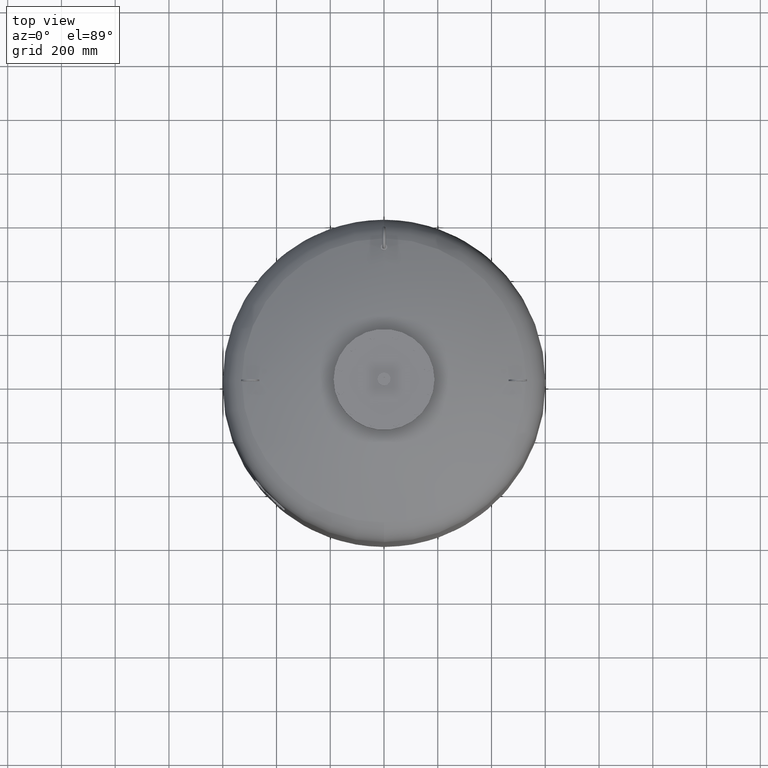
[diagram: clean part render]
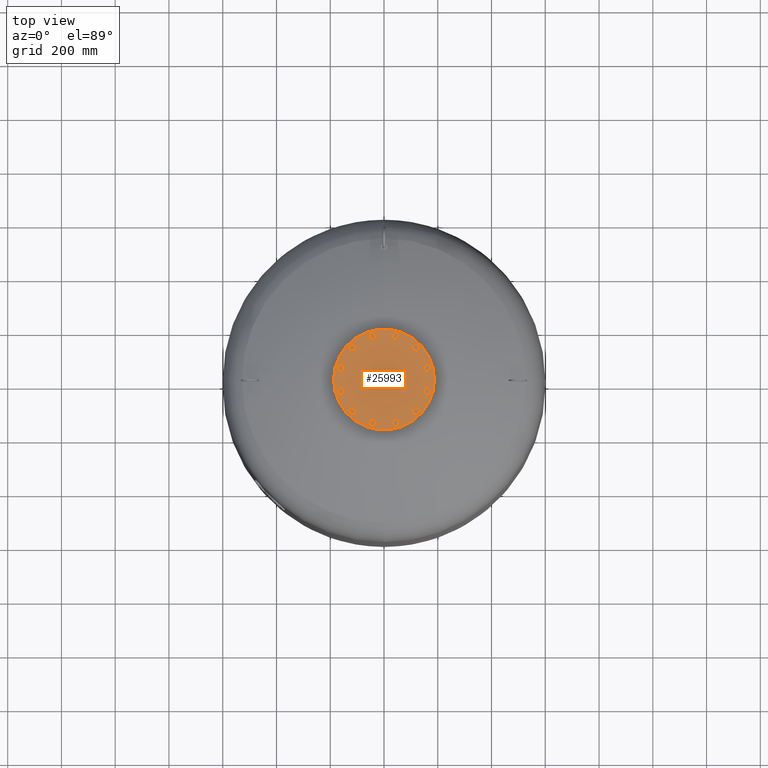
[diagram: same view with one face highlighted and labeled with its STEP entity id]
A machine part, top view. The second image highlights one B-rep face of the part: STEP entity #25993.
In plain terms, the highlighted planar face has unit normal (0, 0, 1).
Its self-contained STEP definition (entity closure, byte-faithful):
#18231=CARTESIAN_POINT('',(-187.500000000000000,0.0,2020.0));
#18232=VERTEX_POINT('',#18231);
#18248=CARTESIAN_POINT('',(187.500000000000000,-2.296137E-014,2020.0));
#18249=VERTEX_POINT('',#18248);
#18256=CARTESIAN_POINT('',(0.0,0.0,2020.0));
#18257=DIRECTION('',(0.0,0.0,-1.0));
#18258=DIRECTION('',(-1.0,0.0,0.0));
#18259=AXIS2_PLACEMENT_3D('',#18256,#18257,#18258);
#18260=CIRCLE('',#18259,187.500000000000000);
#18261=EDGE_CURVE('',#18249,#18232,#18260,.T.);
#23487=CARTESIAN_POINT('',(157.729139400922860,30.104983413641008,2020.0));
#23488=VERTEX_POINT('',#23487);
#23489=CARTESIAN_POINT('',(148.288440171855850,40.247625971983268,2020.0));
#23490=VERTEX_POINT('',#23489);
#23491=CARTESIAN_POINT('',(157.729139400922860,30.104983413641008,2020.0));
#23492=DIRECTION('',(-0.681323780155013,0.731982176419128,0.0));
#23493=VECTOR('',#23492,13.856406460551090);
#23494=LINE('',#23491,#23493);
#23495=EDGE_CURVE('',#23488,#23490,#23494,.T.);
#23527=CARTESIAN_POINT('',(171.233275132485970,33.209547496330110,2020.0));
#23528=VERTEX_POINT('',#23527);
#23529=CARTESIAN_POINT('',(171.233275132485970,33.209547496330110,2020.0));
#23530=DIRECTION('',(-0.974577049973894,-0.224052613607123,0.0));
#23531=VECTOR('',#23530,13.856406460551119);
#23532=LINE('',#23529,#23531);
#23533=EDGE_CURVE('',#23528,#23488,#23532,.T.);
#23558=CARTESIAN_POINT('',(175.296711634982050,46.456754137361422,2020.0));
#23559=VERTEX_POINT('',#23558);
#23560=CARTESIAN_POINT('',(175.296711634982050,46.456754137361422,2020.0));
#23561=DIRECTION('',(-0.293253269818881,-0.956034790026249,0.0));
#23562=VECTOR('',#23561,13.856406460551076);
#23563=LINE('',#23560,#23562);
#23564=EDGE_CURVE('',#23559,#23528,#23563,.T.);
#23589=CARTESIAN_POINT('',(152.351876674351930,53.494832613014587,2020.0));
#23590=VERTEX_POINT('',#23589);
#23591=CARTESIAN_POINT('',(148.288440171855850,40.247625971983268,2020.0));
#23592=DIRECTION('',(0.293253269818881,0.956034790026249,0.0));
#23593=VECTOR('',#23592,13.856406460551083);
#23594=LINE('',#23591,#23593);
#23595=EDGE_CURVE('',#23490,#23590,#23594,.T.);
#23620=CARTESIAN_POINT('',(165.856012405915040,56.599396695703689,2020.0));
#23621=VERTEX_POINT('',#23620);
#23622=CARTESIAN_POINT('',(152.351876674351930,53.494832613014587,2020.0));
#23623=DIRECTION('',(0.974577049973894,0.224052613607123,0.0));
#23624=VECTOR('',#23623,13.856406460551119);
#23625=LINE('',#23622,#23624);
#23626=EDGE_CURVE('',#23590,#23621,#23625,.T.);
#23651=CARTESIAN_POINT('',(165.856012405915040,56.599396695703689,2020.0));
#23652=DIRECTION('',(0.681323780155012,-0.731982176419129,0.0));
#23653=VECTOR('',#23652,13.856406460551096);
#23654=LINE('',#23651,#23653);
#23655=EDGE_CURVE('',#23621,#23559,#23654,.T.);
#23687=CARTESIAN_POINT('',(121.544949931435720,104.936250117183760,2020.0));
#23688=VERTEX_POINT('',#23687);
#23689=CARTESIAN_POINT('',(108.297743290404380,108.999686619679820,2020.0));
#23690=VERTEX_POINT('',#23689);
#23691=CARTESIAN_POINT('',(121.544949931435720,104.936250117183760,2020.0));
#23692=DIRECTION('',(-0.956034790026250,0.293253269818880,0.0));
#23693=VECTOR('',#23692,13.856406460551101);
#23694=LINE('',#23691,#23693);
#23695=EDGE_CURVE('',#23688,#23690,#23694,.T.);
#23727=CARTESIAN_POINT('',(131.687592489777960,114.376949346250780,2020.0));
#23728=VERTEX_POINT('',#23727);
#23729=CARTESIAN_POINT('',(131.687592489777960,114.376949346250780,2020.0));
#23730=DIRECTION('',(-0.731982176419127,-0.681323780155014,0.0));
#23731=VECTOR('',#23730,13.856406460551080);
#23732=LINE('',#23729,#23731);
#23733=EDGE_CURVE('',#23728,#23688,#23732,.T.);
#23758=CARTESIAN_POINT('',(128.583028407088880,127.881085077813880,2020.0));
#23759=VERTEX_POINT('',#23758);
#23760=CARTESIAN_POINT('',(128.583028407088880,127.881085077813880,2020.0));
#23761=DIRECTION('',(0.224052613607122,-0.974577049973894,0.0));
#23762=VECTOR('',#23761,13.856406460551099);
#23763=LINE('',#23760,#23762);
#23764=EDGE_CURVE('',#23759,#23728,#23763,.T.);
#23789=CARTESIAN_POINT('',(105.193179207715300,122.503822351242900,2020.0));
#23790=VERTEX_POINT('',#23789);
#23791=CARTESIAN_POINT('',(108.297743290404380,108.999686619679820,2020.0));
#23792=DIRECTION('',(-0.224052613607122,0.974577049973894,0.0));
#23793=VECTOR('',#23792,13.856406460551087);
#23794=LINE('',#23791,#23793);
#23795=EDGE_CURVE('',#23690,#23790,#23794,.T.);
#23820=CARTESIAN_POINT('',(115.335821766057560,131.944521580309950,2020.0));
#23821=VERTEX_POINT('',#23820);
#23822=CARTESIAN_POINT('',(105.193179207715300,122.503822351242900,2020.0));
#23823=DIRECTION('',(0.731982176419127,0.681323780155014,0.0));
#23824=VECTOR('',#23823,13.856406460551121);
#23825=LINE('',#23822,#23824);
#23826=EDGE_CURVE('',#23790,#23821,#23825,.T.);
#23851=CARTESIAN_POINT('',(115.335821766057560,131.944521580309950,2020.0));
#23852=DIRECTION('',(0.956034790026249,-0.293253269818881,0.0));
#23853=VECTOR('',#23852,13.856406460551076);
#23854=LINE('',#23851,#23853);
#23855=EDGE_CURVE('',#23821,#23759,#23854,.T.);
#23887=CARTESIAN_POINT('',(52.792889283739193,151.649933345076730,2020.0));
#23888=VERTEX_POINT('',#23887);
#23889=CARTESIAN_POINT('',(39.288753552176118,148.545369262387680,2020.0));
#23890=VERTEX_POINT('',#23889);
#23891=CARTESIAN_POINT('',(52.792889283739193,151.649933345076730,2020.0));
#23892=DIRECTION('',(-0.974577049973894,-0.224052613607120,0.0));
#23893=VECTOR('',#23892,13.856406460551073);
#23894=LINE('',#23891,#23893);
#23895=EDGE_CURVE('',#23888,#23890,#23894,.T.);
#23927=CARTESIAN_POINT('',(56.856325786235274,164.897139986108100,2020.0));
#23928=VERTEX_POINT('',#23927);
#23929=CARTESIAN_POINT('',(56.856325786235274,164.897139986108100,2020.0));
#23930=DIRECTION('',(-0.293253269818881,-0.956034790026249,0.0));
#23931=VECTOR('',#23930,13.856406460551133);
#23932=LINE('',#23929,#23931);
#23933=EDGE_CURVE('',#23928,#23888,#23932,.T.);
#23958=CARTESIAN_POINT('',(47.415626557168267,175.039782544450330,2020.0));
#23959=VERTEX_POINT('',#23958);
#23960=CARTESIAN_POINT('',(47.415626557168267,175.039782544450330,2020.0));
#23961=DIRECTION('',(0.681323780155014,-0.731982176419128,0.0));
#23962=VECTOR('',#23961,13.856406460551069);
#23963=LINE('',#23960,#23962);
#23964=EDGE_CURVE('',#23959,#23928,#23963,.T.);
#23989=CARTESIAN_POINT('',(29.848054323109103,158.688011820729910,2020.0));
#23990=VERTEX_POINT('',#23989);
#23991=CARTESIAN_POINT('',(39.288753552176118,148.545369262387680,2020.0));
#23992=DIRECTION('',(-0.681323780155014,0.731982176419127,0.0));
#23993=VECTOR('',#23992,13.856406460551076);
#23994=LINE('',#23991,#23993);
#23995=EDGE_CURVE('',#23890,#23990,#23994,.T.);
#24020=CARTESIAN_POINT('',(33.911490825605156,171.935218461761250,2020.0));
#24021=VERTEX_POINT('',#24020);
#24022=CARTESIAN_POINT('',(29.848054323109103,158.688011820729910,2020.0));
#24023=DIRECTION('',(0.293253269818879,0.956034790026250,0.0));
#24024=VECTOR('',#24023,13.856406460551097);
#24025=LINE('',#24022,#24024);
#24026=EDGE_CURVE('',#23990,#24021,#24025,.T.);
#24051=CARTESIAN_POINT('',(33.911490825605156,171.935218461761250,2020.0));
#24052=DIRECTION('',(0.974577049973894,0.224052613607121,0.0));
#24053=VECTOR('',#24052,13.856406460551113);
#24054=LINE('',#24051,#24053);
#24055=EDGE_CURVE('',#24021,#23959,#24054,.T.);
#24087=CARTESIAN_POINT('',(-30.104983413641008,157.729139400922860,2020.0));
#24088=VERTEX_POINT('',#24087);
#24089=CARTESIAN_POINT('',(-40.247625971983268,148.288440171855850,2020.0));
#24090=VERTEX_POINT('',#24089);
#24091=CARTESIAN_POINT('',(-30.104983413641008,157.729139400922860,2020.0));
#24092=DIRECTION('',(-0.731982176419128,-0.681323780155013,0.0));
#24093=VECTOR('',#24092,13.856406460551090);
#24094=LINE('',#24091,#24093);
#24095=EDGE_CURVE('',#24088,#24090,#24094,.T.);
#24127=CARTESIAN_POINT('',(-33.209547496330110,171.233275132485970,2020.0));
#24128=VERTEX_POINT('',#24127);
#24129=CARTESIAN_POINT('',(-33.209547496330110,171.233275132485970,2020.0));
#24130=DIRECTION('',(0.224052613607123,-0.974577049973894,0.0));
#24131=VECTOR('',#24130,13.856406460551119);
#24132=LINE('',#24129,#24131);
#24133=EDGE_CURVE('',#24128,#24088,#24132,.T.);
#24158=CARTESIAN_POINT('',(-46.456754137361422,175.296711634982050,2020.0));
#24159=VERTEX_POINT('',#24158);
#24160=CARTESIAN_POINT('',(-46.456754137361422,175.296711634982050,2020.0));
#24161=DIRECTION('',(0.956034790026249,-0.293253269818881,0.0));
#24162=VECTOR('',#24161,13.856406460551076);
#24163=LINE('',#24160,#24162);
#24164=EDGE_CURVE('',#24159,#24128,#24163,.T.);
#24189=CARTESIAN_POINT('',(-53.494832613014587,152.351876674351930,2020.0));
#24190=VERTEX_POINT('',#24189);
#24191=CARTESIAN_POINT('',(-40.247625971983268,148.288440171855850,2020.0));
#24192=DIRECTION('',(-0.956034790026249,0.293253269818881,0.0));
#24193=VECTOR('',#24192,13.856406460551083);
#24194=LINE('',#24191,#24193);
#24195=EDGE_CURVE('',#24090,#24190,#24194,.T.);
#24220=CARTESIAN_POINT('',(-56.599396695703689,165.856012405915040,2020.0));
#24221=VERTEX_POINT('',#24220);
#24222=CARTESIAN_POINT('',(-53.494832613014587,152.351876674351930,2020.0));
#24223=DIRECTION('',(-0.224052613607123,0.974577049973894,0.0));
#24224=VECTOR('',#24223,13.856406460551119);
#24225=LINE('',#24222,#24224);
#24226=EDGE_CURVE('',#24190,#24221,#24225,.T.);
#24251=CARTESIAN_POINT('',(-56.599396695703689,165.856012405915040,2020.0));
#24252=DIRECTION('',(0.731982176419129,0.681323780155012,0.0));
#24253=VECTOR('',#24252,13.856406460551096);
#24254=LINE('',#24251,#24253);
#24255=EDGE_CURVE('',#24221,#24159,#24254,.T.);
#24287=CARTESIAN_POINT('',(-104.936250117183700,121.544949931435750,2020.0));
#24288=VERTEX_POINT('',#24287);
#24289=CARTESIAN_POINT('',(-108.999686619679760,108.297743290404440,2020.0));
#24290=VERTEX_POINT('',#24289);
#24291=CARTESIAN_POINT('',(-104.936250117183700,121.544949931435750,2020.0));
#24292=DIRECTION('',(-0.293253269818880,-0.956034790026249,0.0));
#24293=VECTOR('',#24292,13.856406460551073);
#24294=LINE('',#24291,#24293);
#24295=EDGE_CURVE('',#24288,#24290,#24294,.T.);
#24327=CARTESIAN_POINT('',(-114.376949346250730,131.687592489778010,2020.0));
#24328=VERTEX_POINT('',#24327);
#24329=CARTESIAN_POINT('',(-114.376949346250730,131.687592489778010,2020.0));
#24330=DIRECTION('',(0.681323780155013,-0.731982176419128,0.0));
#24331=VECTOR('',#24330,13.856406460551101);
#24332=LINE('',#24329,#24331);
#24333=EDGE_CURVE('',#24328,#24288,#24332,.T.);
#24358=CARTESIAN_POINT('',(-127.881085077813810,128.583028407088930,2020.0));
#24359=VERTEX_POINT('',#24358);
#24360=CARTESIAN_POINT('',(-127.881085077813810,128.583028407088930,2020.0));
#24361=DIRECTION('',(0.974577049973894,0.224052613607122,0.0));
#24362=VECTOR('',#24361,13.856406460551087);
#24363=LINE('',#24360,#24362);
#24364=EDGE_CURVE('',#24359,#24328,#24363,.T.);
#24389=CARTESIAN_POINT('',(-122.503822351242850,105.193179207715360,2020.0));
#24390=VERTEX_POINT('',#24389);
#24391=CARTESIAN_POINT('',(-108.999686619679760,108.297743290404440,2020.0));
#24392=DIRECTION('',(-0.974577049973894,-0.224052613607122,0.0));
#24393=VECTOR('',#24392,13.856406460551087);
#24394=LINE('',#24391,#24393);
#24395=EDGE_CURVE('',#24290,#24390,#24394,.T.);
#24420=CARTESIAN_POINT('',(-131.944521580309900,115.335821766057620,2020.0));
#24421=VERTEX_POINT('',#24420);
#24422=CARTESIAN_POINT('',(-122.503822351242850,105.193179207715360,2020.0));
#24423=DIRECTION('',(-0.681323780155014,0.731982176419127,0.0));
#24424=VECTOR('',#24423,13.856406460551121);
#24425=LINE('',#24422,#24424);
#24426=EDGE_CURVE('',#24390,#24421,#24425,.T.);
#24451=CARTESIAN_POINT('',(-131.944521580309900,115.335821766057620,2020.0));
#24452=DIRECTION('',(0.293253269818882,0.956034790026249,0.0));
#24453=VECTOR('',#24452,13.856406460551081);
#24454=LINE('',#24451,#24453);
#24455=EDGE_CURVE('',#24421,#24359,#24454,.T.);
#24487=CARTESIAN_POINT('',(-151.649933345076730,52.792889283739214,2020.0));
#24488=VERTEX_POINT('',#24487);
#24489=CARTESIAN_POINT('',(-148.545369262387650,39.288753552176125,2020.0));
#24490=VERTEX_POINT('',#24489);
#24491=CARTESIAN_POINT('',(-151.649933345076730,52.792889283739214,2020.0));
#24492=DIRECTION('',(0.224052613607122,-0.974577049973894,0.0));
#24493=VECTOR('',#24492,13.856406460551092);
#24494=LINE('',#24491,#24493);
#24495=EDGE_CURVE('',#24488,#24490,#24494,.T.);
#24527=CARTESIAN_POINT('',(-164.897139986108100,56.856325786235296,2020.0));
#24528=VERTEX_POINT('',#24527);
#24529=CARTESIAN_POINT('',(-164.897139986108100,56.856325786235296,2020.0));
#24530=DIRECTION('',(0.956034790026249,-0.293253269818881,0.0));
#24531=VECTOR('',#24530,13.856406460551133);
#24532=LINE('',#24529,#24531);
#24533=EDGE_CURVE('',#24528,#24488,#24532,.T.);
#24558=CARTESIAN_POINT('',(-175.039782544450300,47.415626557168260,2020.0));
#24559=VERTEX_POINT('',#24558);
#24560=CARTESIAN_POINT('',(-175.039782544450300,47.415626557168260,2020.0));
#24561=DIRECTION('',(0.731982176419126,0.681323780155016,0.0));
#24562=VECTOR('',#24561,13.856406460551069);
#24563=LINE('',#24560,#24562);
#24564=EDGE_CURVE('',#24559,#24528,#24563,.T.);
#24589=CARTESIAN_POINT('',(-158.688011820729910,29.848054323109110,2020.0));
#24590=VERTEX_POINT('',#24589);
#24591=CARTESIAN_POINT('',(-148.545369262387650,39.288753552176125,2020.0));
#24592=DIRECTION('',(-0.731982176419128,-0.681323780155013,0.0));
#24593=VECTOR('',#24592,13.856406460551096);
#24594=LINE('',#24591,#24593);
#24595=EDGE_CURVE('',#24490,#24590,#24594,.T.);
#24620=CARTESIAN_POINT('',(-171.935218461761250,33.911490825605171,2020.0));
#24621=VERTEX_POINT('',#24620);
#24622=CARTESIAN_POINT('',(-158.688011820729910,29.848054323109110,2020.0));
#24623=DIRECTION('',(-0.956034790026250,0.293253269818880,0.0));
#24624=VECTOR('',#24623,13.856406460551101);
#24625=LINE('',#24622,#24624);
#24626=EDGE_CURVE('',#24590,#24621,#24625,.T.);
#24651=CARTESIAN_POINT('',(-171.935218461761250,33.911490825605171,2020.0));
#24652=DIRECTION('',(-0.224052613607120,0.974577049973894,0.0));
#24653=VECTOR('',#24652,13.856406460551087);
#24654=LINE('',#24651,#24653);
#24655=EDGE_CURVE('',#24621,#24559,#24654,.T.);
#24687=CARTESIAN_POINT('',(-157.729139400922860,-30.104983413640987,2020.0));
#24688=VERTEX_POINT('',#24687);
#24689=CARTESIAN_POINT('',(-148.288440171855850,-40.247625971983247,2020.0));
#24690=VERTEX_POINT('',#24689);
#24691=CARTESIAN_POINT('',(-157.729139400922860,-30.104983413640987,2020.0));
#24692=DIRECTION('',(0.681323780155013,-0.731982176419128,0.0));
#24693=VECTOR('',#24692,13.856406460551090);
#24694=LINE('',#24691,#24693);
#24695=EDGE_CURVE('',#24688,#24690,#24694,.T.);
#24727=CARTESIAN_POINT('',(-171.233275132486000,-33.209547496330096,2020.0));
#24728=VERTEX_POINT('',#24727);
#24729=CARTESIAN_POINT('',(-171.233275132486000,-33.209547496330096,2020.0));
#24730=DIRECTION('',(0.974577049973894,0.224052613607123,0.0));
#24731=VECTOR('',#24730,13.856406460551147);
#24732=LINE('',#24729,#24731);
#24733=EDGE_CURVE('',#24728,#24688,#24732,.T.);
#24758=CARTESIAN_POINT('',(-175.296711634982050,-46.456754137361401,2020.0));
#24759=VERTEX_POINT('',#24758);
#24760=CARTESIAN_POINT('',(-175.296711634982050,-46.456754137361401,2020.0));
#24761=DIRECTION('',(0.293253269818880,0.956034790026250,0.0));
#24762=VECTOR('',#24761,13.856406460551062);
#24763=LINE('',#24760,#24762);
#24764=EDGE_CURVE('',#24759,#24728,#24763,.T.);
#24789=CARTESIAN_POINT('',(-152.351876674351960,-53.494832613014580,2020.0));
#24790=VERTEX_POINT('',#24789);
#24791=CARTESIAN_POINT('',(-148.288440171855850,-40.247625971983247,2020.0));
#24792=DIRECTION('',(-0.293253269818883,-0.956034790026249,0.0));
#24793=VECTOR('',#24792,13.856406460551106);
#24794=LINE('',#24791,#24793);
#24795=EDGE_CURVE('',#24690,#24790,#24794,.T.);
#24820=CARTESIAN_POINT('',(-165.856012405915070,-56.599396695703646,2020.0));
#24821=VERTEX_POINT('',#24820);
#24822=CARTESIAN_POINT('',(-152.351876674351960,-53.494832613014580,2020.0));
#24823=DIRECTION('',(-0.974577049973894,-0.224052613607121,0.0));
#24824=VECTOR('',#24823,13.856406460551110);
#24825=LINE('',#24822,#24824);
#24826=EDGE_CURVE('',#24790,#24821,#24825,.T.);
#24851=CARTESIAN_POINT('',(-165.856012405915070,-56.599396695703646,2020.0));
#24852=DIRECTION('',(-0.681323780155012,0.731982176419129,0.0));
#24853=VECTOR('',#24852,13.856406460551062);
#24854=LINE('',#24851,#24853);
#24855=EDGE_CURVE('',#24821,#24759,#24854,.T.);
#24887=CARTESIAN_POINT('',(-121.544949931435750,-104.936250117183680,2020.0));
#24888=VERTEX_POINT('',#24887);
#24889=CARTESIAN_POINT('',(-108.297743290404440,-108.999686619679760,2020.0));
#24890=VERTEX_POINT('',#24889);
#24891=CARTESIAN_POINT('',(-121.544949931435750,-104.936250117183680,2020.0));
#24892=DIRECTION('',(0.956034790026249,-0.293253269818882,0.0));
#24893=VECTOR('',#24892,13.856406460551081);
#24894=LINE('',#24891,#24893);
#24895=EDGE_CURVE('',#24888,#24890,#24894,.T.);
#24927=CARTESIAN_POINT('',(-131.687592489778010,-114.376949346250730,2020.0));
#24928=VERTEX_POINT('',#24927);
#24929=CARTESIAN_POINT('',(-131.687592489778010,-114.376949346250730,2020.0));
#24930=DIRECTION('',(0.731982176419127,0.681323780155014,0.0));
#24931=VECTOR('',#24930,13.856406460551121);
#24932=LINE('',#24929,#24931);
#24933=EDGE_CURVE('',#24928,#24888,#24932,.T.);
#24958=CARTESIAN_POINT('',(-128.583028407088930,-127.881085077813790,2020.0));
#24959=VERTEX_POINT('',#24958);
#24960=CARTESIAN_POINT('',(-128.583028407088930,-127.881085077813790,2020.0));
#24961=DIRECTION('',(-0.224052613607122,0.974577049973894,0.0));
#24962=VECTOR('',#24961,13.856406460551071);
#24963=LINE('',#24960,#24962);
#24964=EDGE_CURVE('',#24959,#24928,#24963,.T.);
#24989=CARTESIAN_POINT('',(-105.193179207715360,-122.503822351242850,2020.0));
#24990=VERTEX_POINT('',#24989);
#24991=CARTESIAN_POINT('',(-108.297743290404440,-108.999686619679760,2020.0));
#24992=DIRECTION('',(0.224052613607122,-0.974577049973894,0.0));
#24993=VECTOR('',#24992,13.856406460551087);
#24994=LINE('',#24991,#24993);
#24995=EDGE_CURVE('',#24890,#24990,#24994,.T.);
#25020=CARTESIAN_POINT('',(-115.335821766057620,-131.944521580309900,2020.0));
#25021=VERTEX_POINT('',#25020);
#25022=CARTESIAN_POINT('',(-105.193179207715360,-122.503822351242850,2020.0));
#25023=DIRECTION('',(-0.731982176419127,-0.681323780155014,0.0));
#25024=VECTOR('',#25023,13.856406460551121);
#25025=LINE('',#25022,#25024);
#25026=EDGE_CURVE('',#24990,#25021,#25025,.T.);
#25051=CARTESIAN_POINT('',(-115.335821766057620,-131.944521580309900,2020.0));
#25052=DIRECTION('',(-0.956034790026249,0.293253269818883,0.0));
#25053=VECTOR('',#25052,13.856406460551085);
#25054=LINE('',#25051,#25053);
#25055=EDGE_CURVE('',#25021,#24959,#25054,.T.);
#25087=CARTESIAN_POINT('',(-52.792889283739228,-151.649933345076730,2020.0));
#25088=VERTEX_POINT('',#25087);
#25089=CARTESIAN_POINT('',(-39.288753552176132,-148.545369262387680,2020.0));
#25090=VERTEX_POINT('',#25089);
#25091=CARTESIAN_POINT('',(-52.792889283739228,-151.649933345076730,2020.0));
#25092=DIRECTION('',(0.974577049973894,0.224052613607120,0.0));
#25093=VECTOR('',#25092,13.856406460551094);
#25094=LINE('',#25091,#25093);
#25095=EDGE_CURVE('',#25088,#25090,#25094,.T.);
#25127=CARTESIAN_POINT('',(-56.856325786235296,-164.897139986108100,2020.0));
#25128=VERTEX_POINT('',#25127);
#25129=CARTESIAN_POINT('',(-56.856325786235296,-164.897139986108100,2020.0));
#25130=DIRECTION('',(0.293253269818880,0.956034790026250,0.0));
#25131=VECTOR('',#25130,13.856406460551129);
#25132=LINE('',#25129,#25131);
#25133=EDGE_CURVE('',#25128,#25088,#25132,.T.);
#25158=CARTESIAN_POINT('',(-47.415626557168281,-175.039782544450300,2020.0));
#25159=VERTEX_POINT('',#25158);
#25160=CARTESIAN_POINT('',(-47.415626557168281,-175.039782544450300,2020.0));
#25161=DIRECTION('',(-0.681323780155015,0.731982176419126,0.0));
#25162=VECTOR('',#25161,13.856406460551055);
#25163=LINE('',#25160,#25162);
#25164=EDGE_CURVE('',#25159,#25128,#25163,.T.);
#25189=CARTESIAN_POINT('',(-29.848054323109121,-158.688011820729910,2020.0));
#25190=VERTEX_POINT('',#25189);
#25191=CARTESIAN_POINT('',(-39.288753552176132,-148.545369262387680,2020.0));
#25192=DIRECTION('',(0.681323780155014,-0.731982176419127,0.0));
#25193=VECTOR('',#25192,13.856406460551073);
#25194=LINE('',#25191,#25193);
#25195=EDGE_CURVE('',#25090,#25190,#25194,.T.);
#25220=CARTESIAN_POINT('',(-33.911490825605199,-171.935218461761280,2020.0));
#25221=VERTEX_POINT('',#25220);
#25222=CARTESIAN_POINT('',(-29.848054323109121,-158.688011820729910,2020.0));
#25223=DIRECTION('',(-0.293253269818880,-0.956034790026249,0.0));
#25224=VECTOR('',#25223,13.856406460551133);
#25225=LINE('',#25222,#25224);
#25226=EDGE_CURVE('',#25190,#25221,#25225,.T.);
#25251=CARTESIAN_POINT('',(-33.911490825605199,-171.935218461761280,2020.0));
#25252=DIRECTION('',(-0.974577049973895,-0.224052613607118,0.0));
#25253=VECTOR('',#25252,13.856406460551074);
#25254=LINE('',#25251,#25253);
#25255=EDGE_CURVE('',#25221,#25159,#25254,.T.);
#25287=CARTESIAN_POINT('',(30.104983413640952,-157.729139400922890,2020.0));
#25288=VERTEX_POINT('',#25287);
#25289=CARTESIAN_POINT('',(40.247625971983211,-148.288440171855880,2020.0));
#25290=VERTEX_POINT('',#25289);
#25291=CARTESIAN_POINT('',(30.104983413640952,-157.729139400922890,2020.0));
#25292=DIRECTION('',(0.731982176419128,0.681323780155013,0.0));
#25293=VECTOR('',#25292,13.856406460551090);
#25294=LINE('',#25291,#25293);
#25295=EDGE_CURVE('',#25288,#25290,#25294,.T.);
#25327=CARTESIAN_POINT('',(33.209547496330039,-171.233275132486000,2020.0));
#25328=VERTEX_POINT('',#25327);
#25329=CARTESIAN_POINT('',(33.209547496330039,-171.233275132486000,2020.0));
#25330=DIRECTION('',(-0.224052613607122,0.974577049973894,0.0));
#25331=VECTOR('',#25330,13.856406460551115);
#25332=LINE('',#25329,#25331);
#25333=EDGE_CURVE('',#25328,#25288,#25332,.T.);
#25358=CARTESIAN_POINT('',(46.456754137361351,-175.296711634982070,2020.0));
#25359=VERTEX_POINT('',#25358);
#25360=CARTESIAN_POINT('',(46.456754137361351,-175.296711634982070,2020.0));
#25361=DIRECTION('',(-0.956034790026249,0.293253269818881,0.0));
#25362=VECTOR('',#25361,13.856406460551076);
#25363=LINE('',#25360,#25362);
#25364=EDGE_CURVE('',#25359,#25328,#25363,.T.);
#25389=CARTESIAN_POINT('',(53.494832613014523,-152.351876674351960,2020.0));
#25390=VERTEX_POINT('',#25389);
#25391=CARTESIAN_POINT('',(40.247625971983211,-148.288440171855880,2020.0));
#25392=DIRECTION('',(0.956034790026249,-0.293253269818881,0.0));
#25393=VECTOR('',#25392,13.856406460551076);
#25394=LINE('',#25391,#25393);
#25395=EDGE_CURVE('',#25290,#25390,#25394,.T.);
#25420=CARTESIAN_POINT('',(56.599396695703625,-165.856012405915070,2020.0));
#25421=VERTEX_POINT('',#25420);
#25422=CARTESIAN_POINT('',(53.494832613014523,-152.351876674351960,2020.0));
#25423=DIRECTION('',(0.224052613607123,-0.974577049973894,0.0));
#25424=VECTOR('',#25423,13.856406460551119);
#25425=LINE('',#25422,#25424);
#25426=EDGE_CURVE('',#25390,#25421,#25425,.T.);
#25451=CARTESIAN_POINT('',(56.599396695703625,-165.856012405915070,2020.0));
#25452=DIRECTION('',(-0.731982176419129,-0.681323780155012,0.0));
#25453=VECTOR('',#25452,13.856406460551101);
#25454=LINE('',#25451,#25453);
#25455=EDGE_CURVE('',#25421,#25359,#25454,.T.);
#25487=CARTESIAN_POINT('',(104.936250117183660,-121.544949931435800,2020.0));
#25488=VERTEX_POINT('',#25487);
#25489=CARTESIAN_POINT('',(108.999686619679750,-108.297743290404470,2020.0));
#25490=VERTEX_POINT('',#25489);
#25491=CARTESIAN_POINT('',(104.936250117183660,-121.544949931435800,2020.0));
#25492=DIRECTION('',(0.293253269818882,0.956034790026249,0.0));
#25493=VECTOR('',#25492,13.856406460551094);
#25494=LINE('',#25491,#25493);
#25495=EDGE_CURVE('',#25488,#25490,#25494,.T.);
#25527=CARTESIAN_POINT('',(114.376949346250710,-131.687592489778040,2020.0));
#25528=VERTEX_POINT('',#25527);
#25529=CARTESIAN_POINT('',(114.376949346250710,-131.687592489778040,2020.0));
#25530=DIRECTION('',(-0.681323780155015,0.731982176419126,0.0));
#25531=VECTOR('',#25530,13.856406460551110);
#25532=LINE('',#25529,#25531);
#25533=EDGE_CURVE('',#25528,#25488,#25532,.T.);
#25558=CARTESIAN_POINT('',(127.881085077813760,-128.583028407088960,2020.0));
#25559=VERTEX_POINT('',#25558);
#25560=CARTESIAN_POINT('',(127.881085077813760,-128.583028407088960,2020.0));
#25561=DIRECTION('',(-0.974577049973894,-0.224052613607122,0.0));
#25562=VECTOR('',#25561,13.856406460551058);
#25563=LINE('',#25560,#25562);
#25564=EDGE_CURVE('',#25559,#25528,#25563,.T.);
#25589=CARTESIAN_POINT('',(122.503822351242830,-105.193179207715390,2020.0));
#25590=VERTEX_POINT('',#25589);
#25591=CARTESIAN_POINT('',(108.999686619679750,-108.297743290404470,2020.0));
#25592=DIRECTION('',(0.974577049973894,0.224052613607122,0.0));
#25593=VECTOR('',#25592,13.856406460551087);
#25594=LINE('',#25591,#25593);
#25595=EDGE_CURVE('',#25490,#25590,#25594,.T.);
#25620=CARTESIAN_POINT('',(131.944521580309870,-115.335821766057650,2020.0));
#25621=VERTEX_POINT('',#25620);
#25622=CARTESIAN_POINT('',(122.503822351242830,-105.193179207715390,2020.0));
#25623=DIRECTION('',(0.681323780155014,-0.731982176419127,0.0));
#25624=VECTOR('',#25623,13.856406460551110);
#25625=LINE('',#25622,#25624);
#25626=EDGE_CURVE('',#25590,#25621,#25625,.T.);
#25651=CARTESIAN_POINT('',(131.944521580309870,-115.335821766057650,2020.0));
#25652=DIRECTION('',(-0.293253269818883,-0.956034790026249,0.0));
#25653=VECTOR('',#25652,13.856406460551085);
#25654=LINE('',#25651,#25653);
#25655=EDGE_CURVE('',#25621,#25559,#25654,.T.);
#25687=CARTESIAN_POINT('',(151.649933345076730,-52.792889283739228,2020.0));
#25688=VERTEX_POINT('',#25687);
#25689=CARTESIAN_POINT('',(148.545369262387650,-39.288753552176139,2020.0));
#25690=VERTEX_POINT('',#25689);
#25691=CARTESIAN_POINT('',(151.649933345076730,-52.792889283739228,2020.0));
#25692=DIRECTION('',(-0.224052613607122,0.974577049973894,0.0));
#25693=VECTOR('',#25692,13.856406460551092);
#25694=LINE('',#25691,#25693);
#25695=EDGE_CURVE('',#25688,#25690,#25694,.T.);
#25727=CARTESIAN_POINT('',(164.897139986108070,-56.856325786235303,2020.0));
#25728=VERTEX_POINT('',#25727);
#25729=CARTESIAN_POINT('',(164.897139986108070,-56.856325786235303,2020.0));
#25730=DIRECTION('',(-0.956034790026249,0.293253269818881,0.0));
#25731=VECTOR('',#25730,13.856406460551105);
#25732=LINE('',#25729,#25731);
#25733=EDGE_CURVE('',#25728,#25688,#25732,.T.);
#25758=CARTESIAN_POINT('',(175.039782544450300,-47.415626557168295,2020.0));
#25759=VERTEX_POINT('',#25758);
#25760=CARTESIAN_POINT('',(175.039782544450300,-47.415626557168295,2020.0));
#25761=DIRECTION('',(-0.731982176419128,-0.681323780155014,0.0));
#25762=VECTOR('',#25761,13.856406460551069);
#25763=LINE('',#25760,#25762);
#25764=EDGE_CURVE('',#25759,#25728,#25763,.T.);
#25789=CARTESIAN_POINT('',(158.688011820729910,-29.848054323109132,2020.0));
#25790=VERTEX_POINT('',#25789);
#25791=CARTESIAN_POINT('',(148.545369262387650,-39.288753552176139,2020.0));
#25792=DIRECTION('',(0.731982176419128,0.681323780155013,0.0));
#25793=VECTOR('',#25792,13.856406460551090);
#25794=LINE('',#25791,#25793);
#25795=EDGE_CURVE('',#25690,#25790,#25794,.T.);
#25820=CARTESIAN_POINT('',(171.935218461761250,-33.911490825605206,2020.0));
#25821=VERTEX_POINT('',#25820);
#25822=CARTESIAN_POINT('',(158.688011820729910,-29.848054323109132,2020.0));
#25823=DIRECTION('',(0.956034790026249,-0.293253269818881,0.0));
#25824=VECTOR('',#25823,13.856406460551105);
#25825=LINE('',#25822,#25824);
#25826=EDGE_CURVE('',#25790,#25821,#25825,.T.);
#25851=CARTESIAN_POINT('',(171.935218461761250,-33.911490825605206,2020.0));
#25852=DIRECTION('',(0.224052613607120,-0.974577049973894,0.0));
#25853=VECTOR('',#25852,13.856406460551087);
#25854=LINE('',#25851,#25853);
#25855=EDGE_CURVE('',#25821,#25759,#25854,.T.);
#25882=CARTESIAN_POINT('',(-93.750000000000000,-7.888609E-031,2020.0));
#25883=DIRECTION('',(0.0,0.0,1.0));
#25884=DIRECTION('',(0.0,1.0,0.0));
#25885=AXIS2_PLACEMENT_3D('',#25882,#25883,#25884);
#25886=PLANE('',#25885);
#25887=CARTESIAN_POINT('',(0.0,0.0,2020.0));
#25888=DIRECTION('',(0.0,0.0,-1.0));
#25889=DIRECTION('',(-1.0,0.0,0.0));
#25890=AXIS2_PLACEMENT_3D('',#25887,#25888,#25889);
#25891=CIRCLE('',#25890,187.500000000000000);
#25892=EDGE_CURVE('',#18232,#18249,#25891,.T.);
#25893=ORIENTED_EDGE('',*,*,#25892,.F.);
#25894=ORIENTED_EDGE('',*,*,#18261,.F.);
#25895=EDGE_LOOP('',(#25893,#25894));
#25896=FACE_OUTER_BOUND('',#25895,.T.);
#25897=ORIENTED_EDGE('',*,*,#23495,.T.);
#25898=ORIENTED_EDGE('',*,*,#23595,.T.);
#25899=ORIENTED_EDGE('',*,*,#23626,.T.);
#25900=ORIENTED_EDGE('',*,*,#23655,.T.);
#25901=ORIENTED_EDGE('',*,*,#23564,.T.);
#25902=ORIENTED_EDGE('',*,*,#23533,.T.);
#25903=EDGE_LOOP('',(#25897,#25898,#25899,#25900,#25901,#25902));
#25904=FACE_BOUND('',#25903,.T.);
#25905=ORIENTED_EDGE('',*,*,#23695,.T.);
#25906=ORIENTED_EDGE('',*,*,#23795,.T.);
#25907=ORIENTED_EDGE('',*,*,#23826,.T.);
#25908=ORIENTED_EDGE('',*,*,#23855,.T.);
#25909=ORIENTED_EDGE('',*,*,#23764,.T.);
#25910=ORIENTED_EDGE('',*,*,#23733,.T.);
#25911=EDGE_LOOP('',(#25905,#25906,#25907,#25908,#25909,#25910));
#25912=FACE_BOUND('',#25911,.T.);
#25913=ORIENTED_EDGE('',*,*,#23895,.T.);
#25914=ORIENTED_EDGE('',*,*,#23995,.T.);
#25915=ORIENTED_EDGE('',*,*,#24026,.T.);
#25916=ORIENTED_EDGE('',*,*,#24055,.T.);
#25917=ORIENTED_EDGE('',*,*,#23964,.T.);
#25918=ORIENTED_EDGE('',*,*,#23933,.T.);
#25919=EDGE_LOOP('',(#25913,#25914,#25915,#25916,#25917,#25918));
#25920=FACE_BOUND('',#25919,.T.);
#25921=ORIENTED_EDGE('',*,*,#24095,.T.);
#25922=ORIENTED_EDGE('',*,*,#24195,.T.);
#25923=ORIENTED_EDGE('',*,*,#24226,.T.);
#25924=ORIENTED_EDGE('',*,*,#24255,.T.);
#25925=ORIENTED_EDGE('',*,*,#24164,.T.);
#25926=ORIENTED_EDGE('',*,*,#24133,.T.);
#25927=EDGE_LOOP('',(#25921,#25922,#25923,#25924,#25925,#25926));
#25928=FACE_BOUND('',#25927,.T.);
#25929=ORIENTED_EDGE('',*,*,#24295,.T.);
#25930=ORIENTED_EDGE('',*,*,#24395,.T.);
#25931=ORIENTED_EDGE('',*,*,#24426,.T.);
#25932=ORIENTED_EDGE('',*,*,#24455,.T.);
#25933=ORIENTED_EDGE('',*,*,#24364,.T.);
#25934=ORIENTED_EDGE('',*,*,#24333,.T.);
#25935=EDGE_LOOP('',(#25929,#25930,#25931,#25932,#25933,#25934));
#25936=FACE_BOUND('',#25935,.T.);
#25937=ORIENTED_EDGE('',*,*,#24495,.T.);
#25938=ORIENTED_EDGE('',*,*,#24595,.T.);
#25939=ORIENTED_EDGE('',*,*,#24626,.T.);
#25940=ORIENTED_EDGE('',*,*,#24655,.T.);
#25941=ORIENTED_EDGE('',*,*,#24564,.T.);
#25942=ORIENTED_EDGE('',*,*,#24533,.T.);
#25943=EDGE_LOOP('',(#25937,#25938,#25939,#25940,#25941,#25942));
#25944=FACE_BOUND('',#25943,.T.);
#25945=ORIENTED_EDGE('',*,*,#24695,.T.);
#25946=ORIENTED_EDGE('',*,*,#24795,.T.);
#25947=ORIENTED_EDGE('',*,*,#24826,.T.);
#25948=ORIENTED_EDGE('',*,*,#24855,.T.);
#25949=ORIENTED_EDGE('',*,*,#24764,.T.);
#25950=ORIENTED_EDGE('',*,*,#24733,.T.);
#25951=EDGE_LOOP('',(#25945,#25946,#25947,#25948,#25949,#25950));
#25952=FACE_BOUND('',#25951,.T.);
#25953=ORIENTED_EDGE('',*,*,#24895,.T.);
#25954=ORIENTED_EDGE('',*,*,#24995,.T.);
#25955=ORIENTED_EDGE('',*,*,#25026,.T.);
#25956=ORIENTED_EDGE('',*,*,#25055,.T.);
#25957=ORIENTED_EDGE('',*,*,#24964,.T.);
#25958=ORIENTED_EDGE('',*,*,#24933,.T.);
#25959=EDGE_LOOP('',(#25953,#25954,#25955,#25956,#25957,#25958));
#25960=FACE_BOUND('',#25959,.T.);
#25961=ORIENTED_EDGE('',*,*,#25095,.T.);
#25962=ORIENTED_EDGE('',*,*,#25195,.T.);
#25963=ORIENTED_EDGE('',*,*,#25226,.T.);
#25964=ORIENTED_EDGE('',*,*,#25255,.T.);
#25965=ORIENTED_EDGE('',*,*,#25164,.T.);
#25966=ORIENTED_EDGE('',*,*,#25133,.T.);
#25967=EDGE_LOOP('',(#25961,#25962,#25963,#25964,#25965,#25966));
#25968=FACE_BOUND('',#25967,.T.);
#25969=ORIENTED_EDGE('',*,*,#25295,.T.);
#25970=ORIENTED_EDGE('',*,*,#25395,.T.);
#25971=ORIENTED_EDGE('',*,*,#25426,.T.);
#25972=ORIENTED_EDGE('',*,*,#25455,.T.);
#25973=ORIENTED_EDGE('',*,*,#25364,.T.);
#25974=ORIENTED_EDGE('',*,*,#25333,.T.);
#25975=EDGE_LOOP('',(#25969,#25970,#25971,#25972,#25973,#25974));
#25976=FACE_BOUND('',#25975,.T.);
#25977=ORIENTED_EDGE('',*,*,#25495,.T.);
#25978=ORIENTED_EDGE('',*,*,#25595,.T.);
#25979=ORIENTED_EDGE('',*,*,#25626,.T.);
#25980=ORIENTED_EDGE('',*,*,#25655,.T.);
#25981=ORIENTED_EDGE('',*,*,#25564,.T.);
#25982=ORIENTED_EDGE('',*,*,#25533,.T.);
#25983=EDGE_LOOP('',(#25977,#25978,#25979,#25980,#25981,#25982));
#25984=FACE_BOUND('',#25983,.T.);
#25985=ORIENTED_EDGE('',*,*,#25695,.T.);
#25986=ORIENTED_EDGE('',*,*,#25795,.T.);
#25987=ORIENTED_EDGE('',*,*,#25826,.T.);
#25988=ORIENTED_EDGE('',*,*,#25855,.T.);
#25989=ORIENTED_EDGE('',*,*,#25764,.T.);
#25990=ORIENTED_EDGE('',*,*,#25733,.T.);
#25991=EDGE_LOOP('',(#25985,#25986,#25987,#25988,#25989,#25990));
#25992=FACE_BOUND('',#25991,.T.);
#25993=ADVANCED_FACE('',(#25896,#25904,#25912,#25920,#25928,#25936,#25944,#25952,#25960,#25968,#25976,#25984,#25992),#25886,.T.);